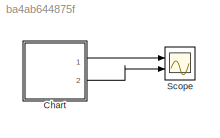
MODEL slx_ba4ab644875f
KIND model
CONFIG AbsTol = auto
CONFIG EnableMultiTasking = off
CONFIG FixedStep = auto
CONFIG MaxStep = auto
CONFIG MinStep = auto
CONFIG RelTol = 1e-3
CONFIG SampleTimeConstraint = Unconstrained
CONFIG Solver = VariableStepAuto
CONFIG SolverName = VariableStepAuto
CONFIG StartTime = 0.0
CONFIG StopTime = 40.0
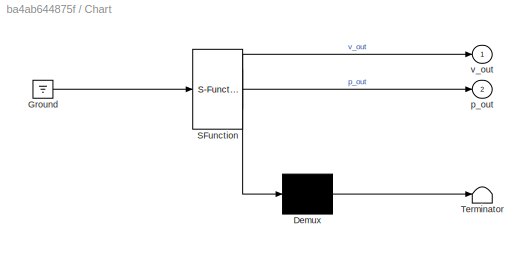
BLOCK [SubSystem] Chart
  ErrorFcn = Stateflow.Translate.translate
  PermitHierarchicalResolution = ExplicitOnly
  Ports = [0, 2]
  RequestExecContextInheritance = off
  SFBlockType = Chart
  TreatAsAtomicUnit = on
BLOCK [Demux] Chart/ Demux 
  Outputs = 1
  Ports = [1, 1]
BLOCK [Ground] Chart/ Ground 
BLOCK [S-Function] Chart/ SFunction 
  EnableBusSupport = on
  FunctionName = sf_sfun
  PortCounts = [1 3]
  Ports = [1, 3]
  SFcnIsStateOwnerBlock = off
  SFunctionDeploymentMode = off
  Tag = Stateflow S-Function 3
BLOCK [Terminator] Chart/ Terminator 
BLOCK [Outport] Chart/p_out
  Port = 2
BLOCK [Outport] Chart/v_out
BLOCK [Scope] Scope
  Floating = off
  NumInputPorts = 2
  Ports = [2]
  ScopeSpecificationString = Simulink.scopes.TimeScopeBlockCfg('CurrentConfiguration', extmgr.ConfigurationSet(extmgr.Configuration('Core','General UI',true),extmgr.Configuration('Core','Source UI',true),extmgr.Configuration('Sources','WiredSimulink',true),extmgr.Configuration('Visuals','Time Domain',true,'SerializedDisplays',{struct('MinYLimReal','-1.25','MaxYLimReal','1.25','YLabelReal','','MinYLimMag','0.00000','MaxYLimMag...<+2059ch>
LINE Chart:1 -> Scope:1
LINE Chart:2 -> Scope:2
CHART Chart states=4 transitions=2
  STATE_LABEL 'Falling\ndu:\np_dot = v;\nv_dot = 0;\np_out = p;\nv_out = v;\n'
  STATE_LABEL 'initialize'
  STATE_LABEL 'SCRIPT:\nfunction initialize\n\np = [1 2]; %initial position of the ball in the board \nv = [1 1]; %initial velocity of the ball in x-y direction\ntableLen= 2; %length of the table\ntableWid= 1; %width of the table\n\n\nend\n'
  STATE_LABEL 'resetposition'
  STATE_LABEL 'SCRIPT:\nfunction resetposition\n\nif p(1,1) < 0\n    p(1,1) = -p(1,1);\n    v(1,1) = -1*v(1,1);\n    v(1,2) = 1*v(1,2);\nelseif p(1,1) > tableLen\n    p(1,1) = 2*tableLen-p(1,1);\n    v(1,1) = -1*v(1,1);\n    v(1,2) = 1*v(1,2);\nend\nif p(1,2) < 0\n    p(1,2) = -p(1,2);\n    v(1,2) = -1*v(1,2);\n    v(1,1) = 1*v(1,1);\nelseif p(1,2) > tableWid\n    p(1,2) = 2*tableWid-p(1,2);\n    v(1,2) = -1*v(1,2);\n    v(1,1) = ...<+17ch>'
  STATE_LABEL 'yn = boundarycrossing'
  STATE_LABEL 'SCRIPT:\nfunction yn = boundarycrossing\n\nif  p(1,1) < 0 || p(1,1) > tableLen || ...\n    p(1,2) < 0 || p(1,2) > tableWid\n    \n    yn = 1;\n    return;\nend      \nyn = 0;\n'
CHART  states=0 transitions=0
